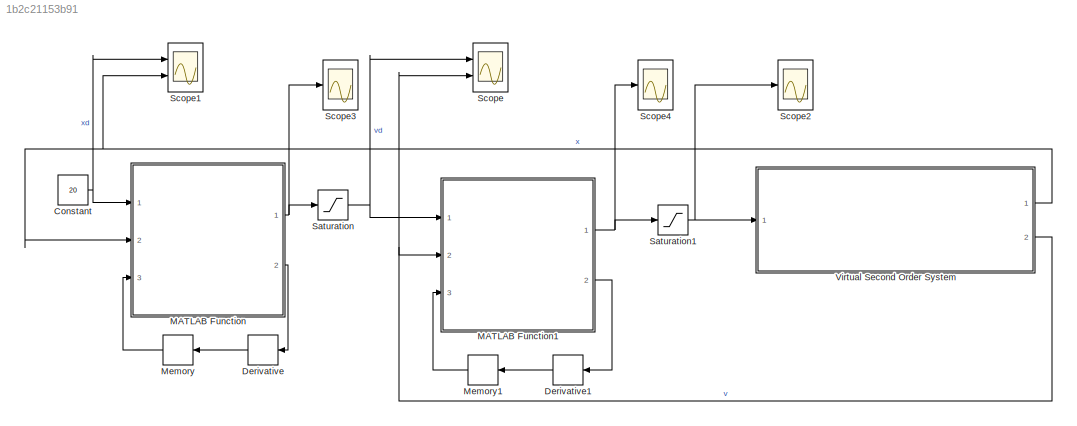
MODEL slx_1b2c21153b91
KIND model
CONFIG AbsTol = auto
CONFIG EnableMultiTasking = off
CONFIG FixedStep = 0.01
CONFIG MaxStep = auto
CONFIG MinStep = auto
CONFIG RelTol = 1e-3
CONFIG SampleTimeConstraint = Unconstrained
CONFIG SolverName = ode4
CONFIG StartTime = 0.0
CONFIG StopTime = 20
BLOCK [Constant] Constant
  Value = 20
BLOCK [Derivative] Derivative
  NameLocation = top
BLOCK [Derivative] Derivative1
  NameLocation = top
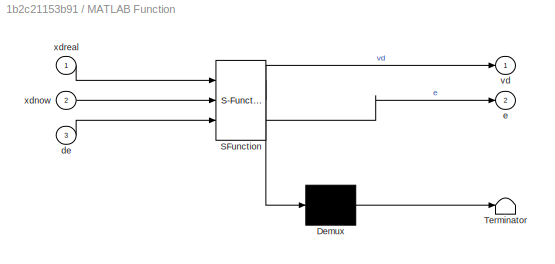
BLOCK [SubSystem] MATLAB Function
  ErrorFcn = Stateflow.Translate.translate
  PermitHierarchicalResolution = ExplicitOnly
  Ports = [3, 2]
  RequestExecContextInheritance = off
  SFBlockType = MATLAB Function
  TreatAsAtomicUnit = on
BLOCK [Demux] MATLAB Function/ Demux 
  Outputs = 1
  Ports = [1, 1]
BLOCK [S-Function] MATLAB Function/ SFunction 
  EnableBusSupport = on
  FunctionName = sf_sfun
  PortCounts = [3 3]
  Ports = [3, 3]
  SFcnIsStateOwnerBlock = off
  SFunctionDeploymentMode = off
  Tag = Stateflow S-Function 2
BLOCK [Terminator] MATLAB Function/ Terminator 
BLOCK [Inport] MATLAB Function/de
  Port = 3
BLOCK [Outport] MATLAB Function/e
  Port = 2
BLOCK [Outport] MATLAB Function/vd
BLOCK [Inport] MATLAB Function/xdnow
  Port = 2
BLOCK [Inport] MATLAB Function/xdreal
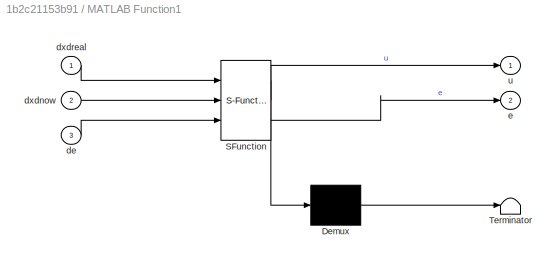
BLOCK [SubSystem] MATLAB Function1
  ErrorFcn = Stateflow.Translate.translate
  PermitHierarchicalResolution = ExplicitOnly
  Ports = [3, 2]
  RequestExecContextInheritance = off
  SFBlockType = MATLAB Function
  TreatAsAtomicUnit = on
BLOCK [Demux] MATLAB Function1/ Demux 
  Outputs = 1
  Ports = [1, 1]
BLOCK [S-Function] MATLAB Function1/ SFunction 
  EnableBusSupport = on
  FunctionName = sf_sfun
  PortCounts = [3 3]
  Ports = [3, 3]
  SFcnIsStateOwnerBlock = off
  SFunctionDeploymentMode = off
  Tag = Stateflow S-Function 1
BLOCK [Terminator] MATLAB Function1/ Terminator 
BLOCK [Inport] MATLAB Function1/de
  Port = 3
BLOCK [Inport] MATLAB Function1/dxdnow
  Port = 2
BLOCK [Inport] MATLAB Function1/dxdreal
BLOCK [Outport] MATLAB Function1/e
  Port = 2
BLOCK [Outport] MATLAB Function1/u
BLOCK [Memory] Memory
  NameLocation = top
BLOCK [Memory] Memory1
  NameLocation = top
BLOCK [Saturate] Saturation
  LowerLimit = -2
  UpperLimit = 2
BLOCK [Saturate] Saturation1
  LowerLimit = -1
  UpperLimit = 1
BLOCK [Scope] Scope
  Floating = off
  NumInputPorts = 2
  Ports = [2]
  ScopeSpecificationString = Simulink.scopes.TimeScopeBlockCfg('CurrentConfiguration', extmgr.ConfigurationSet(extmgr.Configuration('Core','General UI',true),extmgr.Configuration('Core','Source UI',true),extmgr.Configuration('Sources','WiredSimulink',true),extmgr.Configuration('Visuals','Time Domain',true,'SerializedDisplays',{struct('MinYLimReal','-0.25','MaxYLimReal','2.25','YLabelReal','','MinYLimMag','0.00000','MaxYLimMag...<+1335ch>
BLOCK [Scope] Scope1
  Floating = off
  NumInputPorts = 2
  Ports = [2]
  ScopeSpecificationString = Simulink.scopes.TimeScopeBlockCfg('CurrentConfiguration', extmgr.ConfigurationSet(extmgr.Configuration('Core','General UI',true),extmgr.Configuration('Core','Source UI',true),extmgr.Configuration('Sources','WiredSimulink',true,'DataLoggingVariableName','ScopeData1'),extmgr.Configuration('Visuals','Time Domain',true,'SerializedDisplays',{struct('MinYLimReal','-2.5','MaxYLimReal','22.5','YLabelReal'...<+1343ch>
BLOCK [Scope] Scope2
  Floating = off
  NumInputPorts = 1
  Ports = [1]
  ScopeSpecificationString = Simulink.scopes.TimeScopeBlockCfg('CurrentConfiguration', extmgr.ConfigurationSet(extmgr.Configuration('Core','General UI',true),extmgr.Configuration('Core','Source UI',true),extmgr.Configuration('Sources','WiredSimulink',true,'DataLoggingVariableName','ScopeData2'),extmgr.Configuration('Visuals','Time Domain',true,'SerializedDisplays',{struct('MinYLimReal','-1.25','MaxYLimReal','1.25','YLabelReal...<+1350ch>
BLOCK [Scope] Scope3
  Floating = off
  NumInputPorts = 1
  Ports = [1]
  ScopeSpecificationString = Simulink.scopes.TimeScopeBlockCfg('CurrentConfiguration', extmgr.ConfigurationSet(extmgr.Configuration('Core','General UI',true),extmgr.Configuration('Core','Source UI',true),extmgr.Configuration('Sources','WiredSimulink',true,'DataLoggingVariableName','ScopeData3'),extmgr.Configuration('Visuals','Time Domain',true,'SerializedDisplays',{struct('MinYLimReal','-2.49999','MaxYLimReal','22.5','YLabelR...<+1396ch>
BLOCK [Scope] Scope4
  Floating = off
  NumInputPorts = 1
  Ports = [1]
  ScopeSpecificationString = Simulink.scopes.TimeScopeBlockCfg('CurrentConfiguration', extmgr.ConfigurationSet(extmgr.Configuration('Core','General UI',true),extmgr.Configuration('Core','Source UI',true),extmgr.Configuration('Sources','WiredSimulink',true,'DataLoggingVariableName','ScopeData4'),extmgr.Configuration('Visuals','Time Domain',true,'SerializedDisplays',{struct('MinYLimReal','-4.11691','MaxYLimReal','11.56855','YLa...<+1379ch>
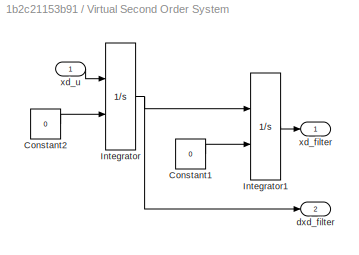
BLOCK [SubSystem] Virtual Second Order System
  Ports = [1, 2]
  RequestExecContextInheritance = off
BLOCK [Constant] Virtual Second Order System/Constant1
  Value = 0
BLOCK [Constant] Virtual Second Order System/Constant2
  Value = 0
BLOCK [Integrator] Virtual Second Order System/Integrator
  InitialConditionSource = external
  Ports = [2, 1]
BLOCK [Integrator] Virtual Second Order System/Integrator1
  InitialConditionSource = external
  Ports = [2, 1]
BLOCK [Outport] Virtual Second Order System/dxd_filter
  Port = 2
BLOCK [Outport] Virtual Second Order System/xd_filter
BLOCK [Inport] Virtual Second Order System/xd_u
NET Constant:1 -> MATLAB Function:1, Scope1:1
LINE Derivative1:1 -> Memory1:1
LINE Derivative:1 -> Memory:1
NET MATLAB Function1:1 -> Saturation1:1, Scope4:1
LINE MATLAB Function1:2 -> Derivative1:1
NET MATLAB Function:1 -> Saturation:1, Scope3:1
LINE MATLAB Function:2 -> Derivative:1
LINE Memory1:1 -> MATLAB Function1:3
LINE Memory:1 -> MATLAB Function:3
NET Saturation1:1 -> Scope2:1, Virtual Second Order System:1
NET Saturation:1 -> MATLAB Function1:1, Scope:1
LINE Virtual Second Order System/Constant1:1 -> Virtual Second Order System/Integrator1:2
LINE Virtual Second Order System/Constant2:1 -> Virtual Second Order System/Integrator:2
LINE Virtual Second Order System/Integrator1:1 -> Virtual Second Order System/xd_filter:1
NET Virtual Second Order System/Integrator:1 -> Virtual Second Order System/Integrator1:1, Virtual Second Order System/dxd_filter:1
LINE Virtual Second Order System/xd_u:1 -> Virtual Second Order System/Integrator:1
NET Virtual Second Order System:1 -> MATLAB Function:2, Scope1:2
NET Virtual Second Order System:2 -> MATLAB Function1:2, Scope:2
note: NET lines group one-source signal fan-out (src -> all destinations, sorted); 1:1 wires keep LINE
CHART MATLAB Function1 states=1 transitions=1
  STATE_LABEL 'eML_blk_kernel()'
  STATE_LABEL 'SCRIPT:\nfunction [u,e] = Velocity_Control(dxdreal,dxdnow,de)\nkp = 5;\nkd = 0.1;\n\ne=dxdreal-dxdnow;\n\nu = kp*e+kd*de;\n'
CHART MATLAB Function states=1 transitions=1
  STATE_LABEL 'eML_blk_kernel()'
  STATE_LABEL 'SCRIPT:\nfunction [vd,e] = Position_Control(xdreal,xdnow,de)\nkp = 1;\nkd = 0.1;\n\ne=xdreal-xdnow;\n\nvd = kp*e+kd*de;\n'
CHART  states=0 transitions=0
CHART  states=0 transitions=0
